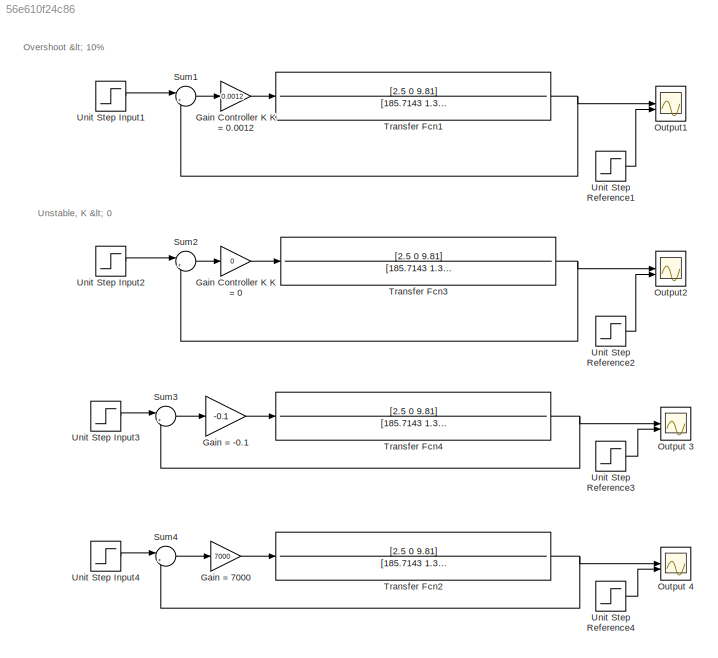
MODEL slx_56e610f24c86
KIND model
CONFIG AbsTol = auto
CONFIG EnableMultiTasking = off
CONFIG FixedStep = auto
CONFIG MaxStep = auto
CONFIG MinStep = auto
CONFIG RelTol = 1e-3
CONFIG SampleTimeConstraint = Unconstrained
CONFIG SolverName = VariableStepAuto
CONFIG StartTime = 0.0
CONFIG StopTime = 8000
BLOCK [Gain] Gain = -0.1
  Gain = -0.1
BLOCK [Gain] Gain = 7000
  Gain = 7000
BLOCK [Gain] Gain Controller K K = 0
  Gain = 0
BLOCK [Gain] Gain Controller K K = 0.0012
  Gain = 0.0012
BLOCK [Scope] Output 3
  Floating = off
  NumInputPorts = 2
  ScopeSpecificationString = Simulink.scopes.TimeScopeBlockCfg('CurrentConfiguration', extmgr.ConfigurationSet(extmgr.Configuration('Core','General UI',true,'FigureColor',[0.831372549019608 0.815686274509804 0.784313725490196]),extmgr.Configuration('Core','Source UI',true),extmgr.Configuration('Sources','WiredSimulink',true,'DataLoggingVariableName','ScopeData3'),extmgr.Configuration('Visuals','Time Domain',true,'SerializedDi...<+2779ch>
BLOCK [Scope] Output 4
  Floating = off
  NumInputPorts = 2
  ScopeSpecificationString = Simulink.scopes.TimeScopeBlockCfg('CurrentConfiguration', extmgr.ConfigurationSet(extmgr.Configuration('Core','General UI',true),extmgr.Configuration('Core','Source UI',true),extmgr.Configuration('Sources','WiredSimulink',true,'DataLoggingVariableName','ScopeData1'),extmgr.Configuration('Visuals','Time Domain',true,'SerializedDisplays',{struct('MinYLimReal','-9996256619.53498','MaxYLimReal','99961...<+1677ch>
BLOCK [Scope] Output1
  Floating = off
  NumInputPorts = 2
  ScopeSpecificationString = Simulink.scopes.TimeScopeBlockCfg('CurrentConfiguration', extmgr.ConfigurationSet(extmgr.Configuration('Core','General UI',true,'FigureColor',[0.831372549019608 0.815686274509804 0.784313725490196]),extmgr.Configuration('Core','Source UI',true),extmgr.Configuration('Sources','WiredSimulink',true,'DataLoggingVariableName','ScopeData1'),extmgr.Configuration('Visuals','Time Domain',true,'SerializedDi...<+2132ch>
BLOCK [Scope] Output2
  Floating = off
  NumInputPorts = 2
  ScopeSpecificationString = Simulink.scopes.TimeScopeBlockCfg('CurrentConfiguration', extmgr.ConfigurationSet(extmgr.Configuration('Core','General UI',true),extmgr.Configuration('Core','Source UI',true),extmgr.Configuration('Sources','WiredSimulink',true,'DataLoggingVariableName','ScopeData2'),extmgr.Configuration('Visuals','Time Domain',true,'SerializedDisplays',{struct('MinYLimReal','-0.125','MaxYLimReal','1.125','YLabelRe...<+1812ch>
BLOCK [Sum] Sum1
  Inputs = |+-
BLOCK [Sum] Sum2
  Inputs = |+-
BLOCK [Sum] Sum3
  Inputs = |+-
BLOCK [Sum] Sum4
  Inputs = |+-
BLOCK [TransferFcn] Transfer Fcn1
  Denominator = [185.7143 1.3693 1748.9827 5.3729 0]
  Numerator = [2.5 0 9.81]
  ParameterTunability = Optimized
BLOCK [TransferFcn] Transfer Fcn2
  Denominator = [185.7143 1.3693 1748.9827 5.3729 0]
  Numerator = [2.5 0 9.81]
  ParameterTunability = Optimized
BLOCK [TransferFcn] Transfer Fcn3
  Denominator = [185.7143 1.3693 1748.9827 5.3729 0]
  Numerator = [2.5 0 9.81]
  ParameterTunability = Optimized
BLOCK [TransferFcn] Transfer Fcn4
  Denominator = [185.7143 1.3693 1748.9827 5.3729 0]
  Numerator = [2.5 0 9.81]
  ParameterTunability = Optimized
BLOCK [Step] Unit Step Input1
  SampleTime = 0
BLOCK [Step] Unit Step Input2
  SampleTime = 0
BLOCK [Step] Unit Step Input3
  SampleTime = 0
BLOCK [Step] Unit Step Input4
  SampleTime = 0
BLOCK [Step] Unit Step Reference1
  SampleTime = 0
BLOCK [Step] Unit Step Reference2
  SampleTime = 0
BLOCK [Step] Unit Step Reference3
  SampleTime = 0
BLOCK [Step] Unit Step Reference4
  SampleTime = 0
ANNOTATION (root): Overshoot < 10%
ANNOTATION (root): Unstable, K < 0
LINE Gain = -0.1:1 -> Transfer Fcn4:1
LINE Gain = 7000:1 -> Transfer Fcn2:1
LINE Gain Controller K K = 0.0012:1 -> Transfer Fcn1:1
LINE Gain Controller K K = 0:1 -> Transfer Fcn3:1
LINE Sum1:1 -> Gain Controller K K = 0.0012:1
LINE Sum2:1 -> Gain Controller K K = 0:1
LINE Sum3:1 -> Gain = -0.1:1
LINE Sum4:1 -> Gain = 7000:1
NET Transfer Fcn1:1 -> Output1:1, Sum1:2
NET Transfer Fcn2:1 -> Output 4:1, Sum4:2
NET Transfer Fcn3:1 -> Output2:1, Sum2:2
NET Transfer Fcn4:1 -> Output 3:1, Sum3:2
LINE Unit Step Input1:1 -> Sum1:1
LINE Unit Step Input2:1 -> Sum2:1
LINE Unit Step Input3:1 -> Sum3:1
LINE Unit Step Input4:1 -> Sum4:1
LINE Unit Step Reference1:1 -> Output1:2
LINE Unit Step Reference2:1 -> Output2:2
LINE Unit Step Reference3:1 -> Output 3:2
LINE Unit Step Reference4:1 -> Output 4:2
note: NET lines group one-source signal fan-out (src -> all destinations, sorted); 1:1 wires keep LINE
